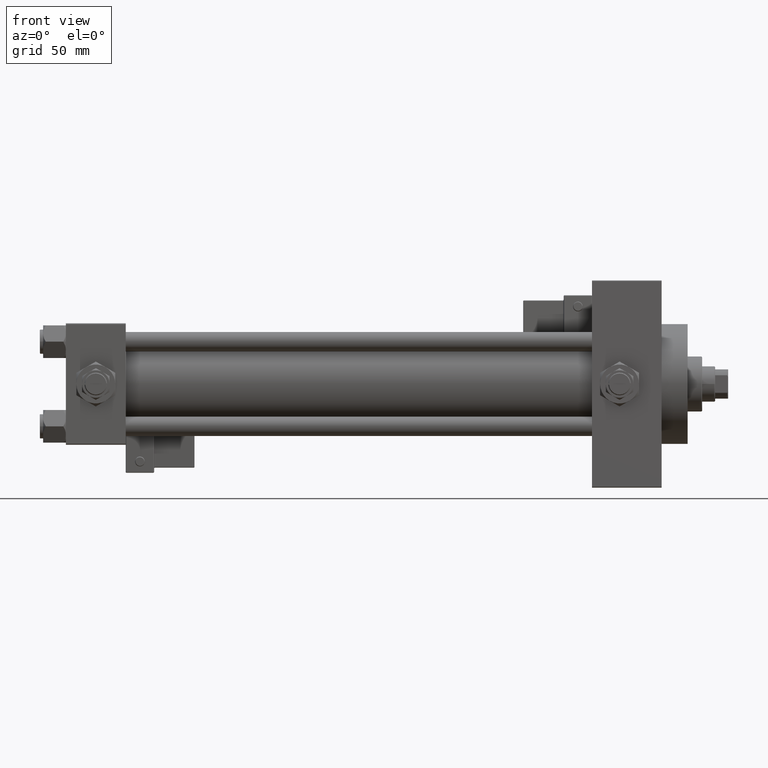
[diagram: clean part render]
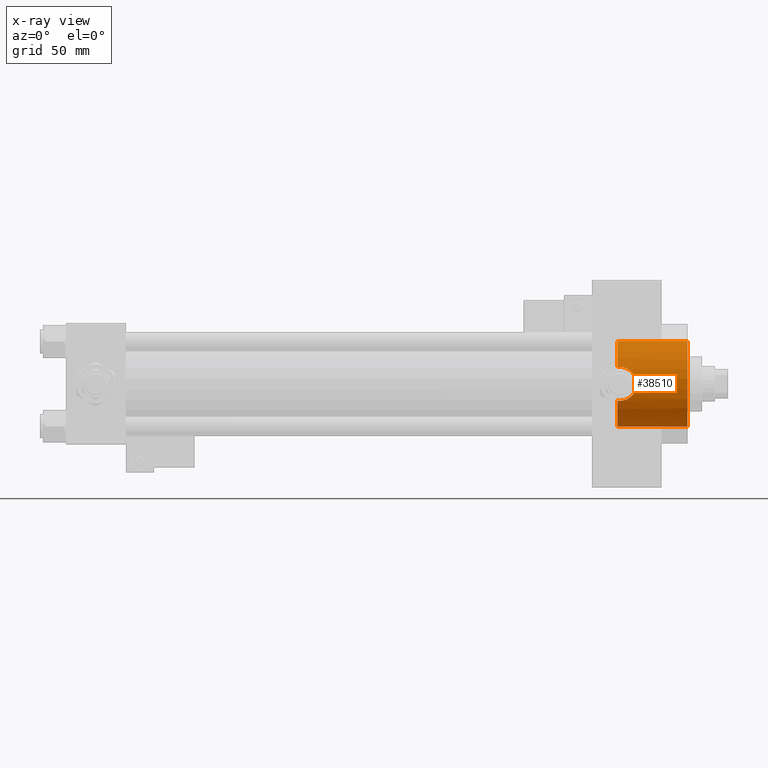
[diagram: x-ray — body ghosted, one internal face saturated and labeled with its STEP entity id]
A machine part, front view, then the same camera in x-ray: the body is ghosted and one INTERNAL B-rep face — a face not visible from any outside direction — is saturated and labeled: STEP entity #38510.
In plain terms, the highlighted cylindrical surface (partial cylindrical patch) has radius 26.5 mm, axis along (1, 0, 0).
Its self-contained STEP definition (entity closure, byte-faithful):
#23 = CARTESIAN_POINT ( 'NONE',  ( 348.4049404352973056, -25.16229795609820030, -8.322848467437522046 ) ) ;
#267 = CARTESIAN_POINT ( 'NONE',  ( 351.0816778311290136, -25.97633853132262516, -5.273786452924778878 ) ) ;
#964 = VERTEX_POINT ( 'NONE', #21245 ) ;
#2516 = LINE ( 'NONE', #49630, #16190 ) ;
#2520 = ORIENTED_EDGE ( 'NONE', *, *, #9161, .T. ) ;
#3178 = EDGE_LOOP ( 'NONE', ( #48496, #47082, #47223, #47119, #45376, #7359, #24713, #2520 ) ) ;
#3419 = CARTESIAN_POINT ( 'NONE',  ( 351.4057128516255943, -26.09263577897064224, -4.673612418766433407 ) ) ;
#3926 = CARTESIAN_POINT ( 'NONE',  ( 342.6982936874238135, -24.33967132070605288, 10.47999999999998799 ) ) ;
#4063 = CARTESIAN_POINT ( 'NONE',  ( 340.7399999999999523, 0.000000000000000000, 0.000000000000000000 ) ) ;
#4178 = CARTESIAN_POINT ( 'NONE',  ( 350.5155153844949609, -25.78569419426080600, -6.118106053452849302 ) ) ;
#4209 = LINE ( 'NONE', #40656, #44437 ) ;
#4214 = EDGE_CURVE ( 'NONE', #15490, #34631, #8975, .T. ) ;
#4293 = B_SPLINE_CURVE_WITH_KNOTS ( 'NONE', 3,
 ( #50282, #17315, #14637, #33182, #47409, #26866, #31026, #31540, #43505, #23, #23215, #27121, #7843, #19819, #4178, #267, #3419, #7333, #23472, #19318, #16165, #32044, #39099, #27625, #47157, #51051, #35183, #42744, #11509, #35695, #46903, #39860, #15918, #31792, #50795, #15666, #15410, #43003, #11760, #23722, #7080, #11250, #39610, #31284, #15152, #47915, #3926, #47660 ),
 .UNSPECIFIED., .F., .F.,
 ( 4, 2, 2, 2, 2, 2, 2, 2, 2, 2, 2, 2, 2, 2, 2, 2, 2, 2, 2, 2, 2, 2, 2, 4 ),
 ( 0.001255586767787742180, 0.003325356817179899935, 0.005395126866572057256, 0.006430011891268136784, 0.007464896915964218047, 0.009534666965356375368, 0.01056955199005239592, 0.01160443701474841993, 0.01367420706414046103, 0.01574397711353250559, 0.01677886213822850706, 0.01781374716292451199, 0.01988351721231651839, 0.02091840223701253720, 0.02195328726170855949, 0.02298817228640457830, 0.02402305731110059711, 0.02609282736049263821, 0.02712771238518860498, 0.02816259740988456828, 0.03023236745927649488, 0.03126725248397245471, 0.03230213750866841455, 0.03437190755806017461 ),
 .UNSPECIFIED. ) ;
#4321 = B_SPLINE_CURVE_WITH_KNOTS ( 'NONE', 3,
 ( #17981, #46081, #14587, #46343 ),
 .UNSPECIFIED., .F., .F.,
 ( 4, 4 ),
 ( 0.000000000000000000, 0.001255586767787742180 ),
 .UNSPECIFIED. ) ;
#4529 = EDGE_CURVE ( 'NONE', #6590, #40389, #18949, .T. ) ;
#5865 = CARTESIAN_POINT ( 'NONE',  ( 340.7399999999999523, 0.000000000000000000, 0.000000000000000000 ) ) ;
#6590 = VERTEX_POINT ( 'NONE', #45359 ) ;
#7080 = CARTESIAN_POINT ( 'NONE',  ( 346.6659000583121042, -24.77500862834707007, 9.408993987884889165 ) ) ;
#7333 = CARTESIAN_POINT ( 'NONE',  ( 351.9389570606564348, -26.28956209411557765, -3.395175965175869059 ) ) ;
#7359 = ORIENTED_EDGE ( 'NONE', *, *, #35029, .T. ) ;
#7444 = DIRECTION ( 'NONE',  ( 0.000000000000000000, 0.000000000000000000, -1.000000000000000000 ) ) ;
#7843 = CARTESIAN_POINT ( 'NONE',  ( 349.8811664359166684, -25.58300917221411197, -6.916171625962134861 ) ) ;
#8126 = AXIS2_PLACEMENT_3D ( 'NONE', #19422, #28244, #7444 ) ;
#8975 = CIRCLE ( 'NONE', #8126, 26.50000000000000355 ) ;
#9161 = EDGE_CURVE ( 'NONE', #964, #34631, #23776, .T. ) ;
#10648 = CIRCLE ( 'NONE', #11477, 26.50000000000000355 ) ;
#11250 = CARTESIAN_POINT ( 'NONE',  ( 345.7173844672075802, -24.61993612039163892, 9.804529592362715817 ) ) ;
#11477 = AXIS2_PLACEMENT_3D ( 'NONE', #4063, #31924, #16564 ) ;
#11509 = CARTESIAN_POINT ( 'NONE',  ( 351.8022638174866188, -26.23907308479209632, 3.723318718764354163 ) ) ;
#11760 = CARTESIAN_POINT ( 'NONE',  ( 348.1110651716821280, -25.09360970262139645, 8.520611273842973787 ) ) ;
#11851 = EDGE_CURVE ( 'NONE', #51261, #964, #4293, .T. ) ;
#12420 = CARTESIAN_POINT ( 'NONE',  ( 340.7399999999999523, -24.37226292324946542, -10.40398000767012121 ) ) ;
#12627 = EDGE_CURVE ( 'NONE', #15490, #6590, #2516, .T. ) ;
#14129 = CARTESIAN_POINT ( 'NONE',  ( 340.7399999999999523, 0.000000000000000000, -26.50000000000000355 ) ) ;
#14508 = DIRECTION ( 'NONE',  ( 1.000000000000000000, -0.000000000000000000, -0.000000000000000000 ) ) ;
#14562 = CARTESIAN_POINT ( 'NONE',  ( 341.9999999999999432, -24.33967132070604933, -10.47999999999998444 ) ) ;
#14587 = CARTESIAN_POINT ( 'NONE',  ( 341.5811236364005481, -24.33967132070604933, -10.47999999999998444 ) ) ;
#14637 = CARTESIAN_POINT ( 'NONE',  ( 343.3786097457405049, -24.36915941385104034, -10.41231194222669032 ) ) ;
#15152 = CARTESIAN_POINT ( 'NONE',  ( 344.3947302122626866, -24.45488967133338676, 10.20851256290626097 ) ) ;
#15295 = CARTESIAN_POINT ( 'NONE',  ( 340.7399999999999523, -24.37226292324946542, 10.40398000767012476 ) ) ;
#15410 = CARTESIAN_POINT ( 'NONE',  ( 348.9147507852791250, -25.30155050139243400, 7.882476147205608186 ) ) ;
#15490 = VERTEX_POINT ( 'NONE', #42662 ) ;
#15666 = CARTESIAN_POINT ( 'NONE',  ( 349.1663633815065850, -25.37171319999175978, 7.654298772871981349 ) ) ;
#15918 = CARTESIAN_POINT ( 'NONE',  ( 350.8904987776701887, -25.91192981801192019, 5.559420023815752288 ) ) ;
#15967 = CARTESIAN_POINT ( 'NONE',  ( 383.9999999999999432, 0.000000000000000000, 0.000000000000000000 ) ) ;
#16165 = CARTESIAN_POINT ( 'NONE',  ( 352.3935590552673034, -26.46591511510091621, -1.387412420731360285 ) ) ;
#16190 = VECTOR ( 'NONE', #14508, 1000.000000000000000 ) ;
#16564 = DIRECTION ( 'NONE',  ( 0.000000000000000000, 0.000000000000000000, -1.000000000000000000 ) ) ;
#17315 = CARTESIAN_POINT ( 'NONE',  ( 342.6904960883776994, -24.33967132070605288, -10.47999999999998622 ) ) ;
#17981 = CARTESIAN_POINT ( 'NONE',  ( 340.7399999999999523, -24.37226292324946542, -10.40398000767012121 ) ) ;
#18949 = CIRCLE ( 'NONE', #38075, 26.50000000000000355 ) ;
#19211 = CARTESIAN_POINT ( 'NONE',  ( 341.9999999999999432, -24.33967132070604578, 10.47999999999998799 ) ) ;
#19318 = CARTESIAN_POINT ( 'NONE',  ( 352.3421836049515719, -26.44572692659851043, -1.728475508984246733 ) ) ;
#19422 = CARTESIAN_POINT ( 'NONE',  ( 340.7399999999999523, 0.000000000000000000, 0.000000000000000000 ) ) ;
#19819 = CARTESIAN_POINT ( 'NONE',  ( 350.3132647636414276, -25.71940794313460188, -6.390292897823909080 ) ) ;
#19870 = DIRECTION ( 'NONE',  ( 1.000000000000000000, 0.000000000000000000, 0.000000000000000000 ) ) ;
#21245 = CARTESIAN_POINT ( 'NONE',  ( 341.9999999999999432, -24.33967132070604578, 10.47999999999998799 ) ) ;
#23215 = CARTESIAN_POINT ( 'NONE',  ( 348.9276451403628130, -25.30216499957184695, -7.893159106980490947 ) ) ;
#23472 = CARTESIAN_POINT ( 'NONE',  ( 352.1391112229688360, -26.36675217432885532, -2.738755341944234090 ) ) ;
#23722 = CARTESIAN_POINT ( 'NONE',  ( 347.2636119660474492, -24.89625137302611790, 9.087734872939149611 ) ) ;
#23776 = B_SPLINE_CURVE_WITH_KNOTS ( 'NONE', 3,
 ( #19211, #43150, #35328, #15295 ),
 .UNSPECIFIED., .F., .F.,
 ( 4, 4 ),
 ( 0.03437190755806017461, 0.03561776921873229668 ),
 .UNSPECIFIED. ) ;
#24106 = VERTEX_POINT ( 'NONE', #14129 ) ;
#24511 = DIRECTION ( 'NONE',  ( 1.000000000000000000, -0.000000000000000000, -0.000000000000000000 ) ) ;
#24713 = ORIENTED_EDGE ( 'NONE', *, *, #11851, .T. ) ;
#25659 = CYLINDRICAL_SURFACE ( 'NONE', #44944, 26.50000000000000355 ) ;
#26185 = FACE_OUTER_BOUND ( 'NONE', #3178, .T. ) ;
#26866 = CARTESIAN_POINT ( 'NONE',  ( 346.3489237122697659, -24.72318467201153425, -9.541179571695417749 ) ) ;
#27121 = CARTESIAN_POINT ( 'NONE',  ( 349.6501220615578518, -25.51256335955730137, -7.170912732211419893 ) ) ;
#27625 = CARTESIAN_POINT ( 'NONE',  ( 352.4798633477533940, -26.49994595790487750, 0.6963870350870609016 ) ) ;
#28244 = DIRECTION ( 'NONE',  ( 1.000000000000000000, 0.000000000000000000, 0.000000000000000000 ) ) ;
#29314 = DIRECTION ( 'NONE',  ( 1.000000000000000000, -0.000000000000000000, -0.000000000000000000 ) ) ;
#31026 = CARTESIAN_POINT ( 'NONE',  ( 346.6580558779860439, -24.77960996754317691, -9.394203453174506890 ) ) ;
#31284 = CARTESIAN_POINT ( 'NONE',  ( 344.7286532048193521, -24.48994387988091148, 10.12445329003759831 ) ) ;
#31540 = CARTESIAN_POINT ( 'NONE',  ( 347.2635990777562256, -24.90054338428141634, -9.068796382691610702 ) ) ;
#31792 = CARTESIAN_POINT ( 'NONE',  ( 350.3165002292778354, -25.71874665637611912, 6.413821170274212058 ) ) ;
#31848 = EDGE_CURVE ( 'NONE', #36215, #24106, #10648, .T. ) ;
#31924 = DIRECTION ( 'NONE',  ( 1.000000000000000000, 0.000000000000000000, 0.000000000000000000 ) ) ;
#32044 = CARTESIAN_POINT ( 'NONE',  ( 352.4626037639856690, -26.49310609510639836, -0.6963515910539230802 ) ) ;
#33182 = CARTESIAN_POINT ( 'NONE',  ( 344.7461877943152899, -24.48462605612511567, -10.13781324604278566 ) ) ;
#34631 = VERTEX_POINT ( 'NONE', #42516 ) ;
#35029 = EDGE_CURVE ( 'NONE', #36215, #51261, #4321, .T. ) ;
#35183 = CARTESIAN_POINT ( 'NONE',  ( 352.1219222710723784, -26.36027543327035971, 2.738055544399103702 ) ) ;
#35328 = CARTESIAN_POINT ( 'NONE',  ( 341.1580741051582208, -24.35064928096445058, 10.45461191700780645 ) ) ;
#35695 = CARTESIAN_POINT ( 'NONE',  ( 351.5385175848664403, -26.14168889184969657, 4.354785931857528603 ) ) ;
#36215 = VERTEX_POINT ( 'NONE', #12420 ) ;
#38075 = AXIS2_PLACEMENT_3D ( 'NONE', #15967, #19870, #39657 ) ;
#38510 = ADVANCED_FACE ( 'NONE', ( #26185 ), #25659, .F. ) ;
#39099 = CARTESIAN_POINT ( 'NONE',  ( 352.4800680225664564, -26.50002690099941560, -0.3451042088078207781 ) ) ;
#39610 = CARTESIAN_POINT ( 'NONE',  ( 345.3904700717596370, -24.57248644795726378, 9.922439993611758879 ) ) ;
#39657 = DIRECTION ( 'NONE',  ( 0.000000000000000000, 0.000000000000000000, -1.000000000000000000 ) ) ;
#39860 = CARTESIAN_POINT ( 'NONE',  ( 351.0679913760331488, -25.97354752128884314, 5.264851845784575879 ) ) ;
#40389 = VERTEX_POINT ( 'NONE', #41881 ) ;
#40656 = CARTESIAN_POINT ( 'NONE',  ( 340.7399999999999523, 0.000000000000000000, -26.50000000000000355 ) ) ;
#41881 = CARTESIAN_POINT ( 'NONE',  ( 383.9999999999999432, 0.000000000000000000, -26.50000000000000355 ) ) ;
#42516 = CARTESIAN_POINT ( 'NONE',  ( 340.7399999999999523, -24.37226292324946542, 10.40398000767012476 ) ) ;
#42662 = CARTESIAN_POINT ( 'NONE',  ( 340.7399999999999523, 3.245314017740486554E-15, 26.50000000000000355 ) ) ;
#42744 = CARTESIAN_POINT ( 'NONE',  ( 351.9191483855534557, -26.28308039691836484, 3.400110870430098409 ) ) ;
#43003 = CARTESIAN_POINT ( 'NONE',  ( 348.3864792908362915, -25.16230905708522059, 8.316254619809559046 ) ) ;
#43150 = CARTESIAN_POINT ( 'NONE',  ( 341.5796744023296583, -24.33967132070604933, 10.47999999999998799 ) ) ;
#43505 = CARTESIAN_POINT ( 'NONE',  ( 347.5577538920437632, -24.96463143003450824, -8.891425016462832787 ) ) ;
#44437 = VECTOR ( 'NONE', #24511, 1000.000000000000000 ) ;
#44944 = AXIS2_PLACEMENT_3D ( 'NONE', #5865, #29314, #45185 ) ;
#45185 = DIRECTION ( 'NONE',  ( 0.000000000000000000, 0.000000000000000000, -1.000000000000000000 ) ) ;
#45359 = CARTESIAN_POINT ( 'NONE',  ( 383.9999999999999432, 3.245314017740486554E-15, 26.50000000000000355 ) ) ;
#45376 = ORIENTED_EDGE ( 'NONE', *, *, #31848, .F. ) ;
#46081 = CARTESIAN_POINT ( 'NONE',  ( 341.1611364518797131, -24.35049096341793273, -10.45498279016080190 ) ) ;
#46343 = CARTESIAN_POINT ( 'NONE',  ( 341.9999999999999432, -24.33967132070604933, -10.47999999999998444 ) ) ;
#46903 = CARTESIAN_POINT ( 'NONE',  ( 351.3916535229814144, -26.08830885934473898, 4.663043711798779967 ) ) ;
#47082 = ORIENTED_EDGE ( 'NONE', *, *, #12627, .T. ) ;
#47119 = ORIENTED_EDGE ( 'NONE', *, *, #49480, .F. ) ;
#47157 = CARTESIAN_POINT ( 'NONE',  ( 352.4114040688938303, -26.47265107862981282, 1.382412405478201434 ) ) ;
#47223 = ORIENTED_EDGE ( 'NONE', *, *, #4529, .T. ) ;
#47409 = CARTESIAN_POINT ( 'NONE',  ( 345.4024368383432488, -24.56844862672226881, -9.935854460437958835 ) ) ;
#47660 = CARTESIAN_POINT ( 'NONE',  ( 341.9999999999999432, -24.33967132070604578, 10.47999999999998799 ) ) ;
#47915 = CARTESIAN_POINT ( 'NONE',  ( 343.3839948142214098, -24.36973996242158336, 10.41091756284552261 ) ) ;
#48496 = ORIENTED_EDGE ( 'NONE', *, *, #4214, .F. ) ;
#49480 = EDGE_CURVE ( 'NONE', #24106, #40389, #4209, .T. ) ;
#49630 = CARTESIAN_POINT ( 'NONE',  ( 340.7399999999999523, 3.245314017740486554E-15, 26.50000000000000355 ) ) ;
#50282 = CARTESIAN_POINT ( 'NONE',  ( 341.9999999999999432, -24.33967132070604933, -10.47999999999998444 ) ) ;
#50795 = CARTESIAN_POINT ( 'NONE',  ( 349.8850942087586304, -25.58093385762821725, 6.936447548980003042 ) ) ;
#51051 = CARTESIAN_POINT ( 'NONE',  ( 352.2075249541714470, -26.39335609204157862, 2.399236127628251225 ) ) ;
#51261 = VERTEX_POINT ( 'NONE', #14562 ) ;